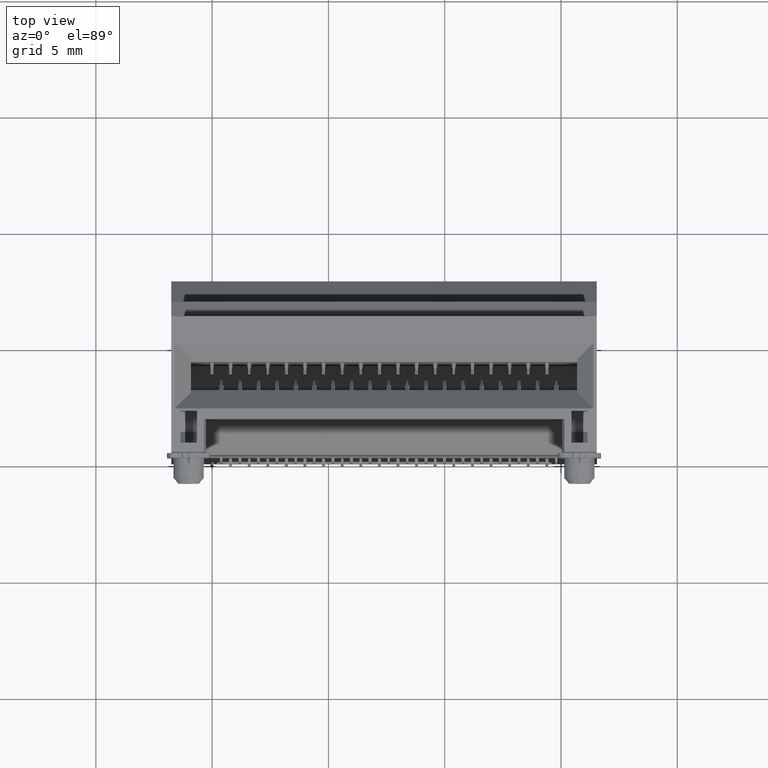
[diagram: clean part render]
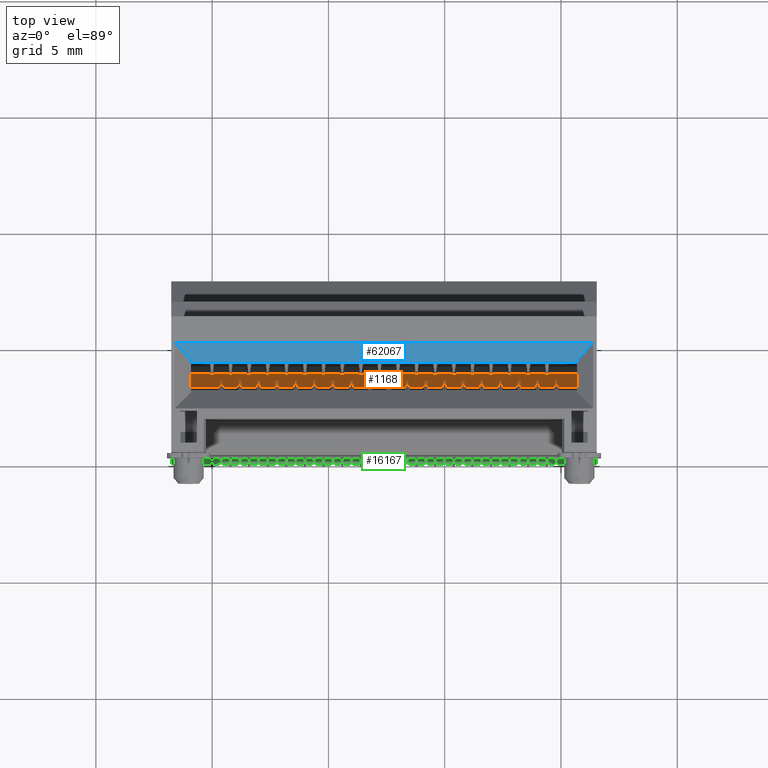
[diagram: same view with three faces highlighted in distinct colors, each labeled with its STEP entity id]
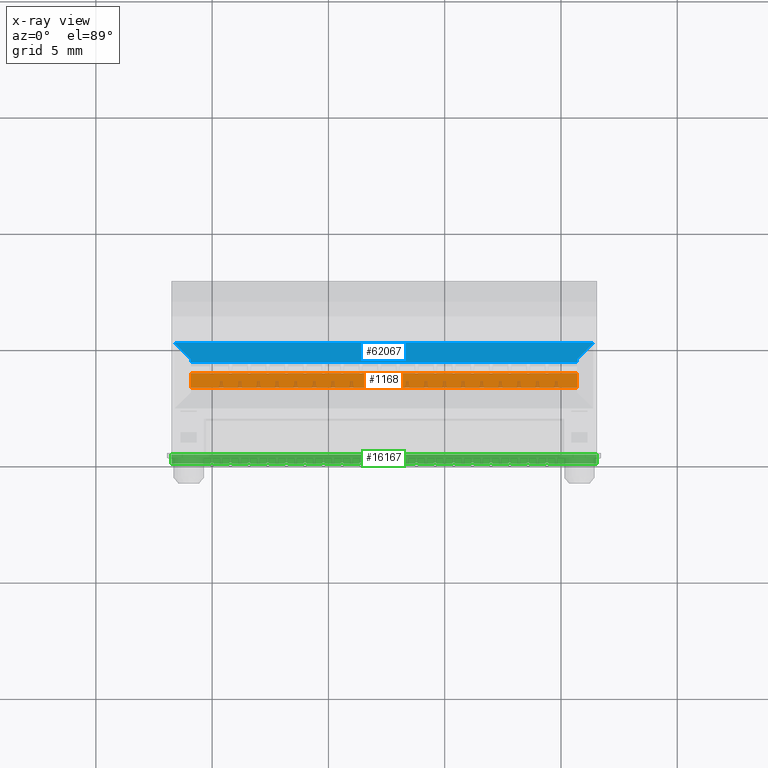
[diagram: x-ray of the same camera — body ghosted, the three highlighted faces saturated]
A machine part, top view with three faces highlighted in distinct colors.
The next image is the same camera in x-ray (body ghosted, the three faces saturated) — at least one of them is partly hidden behind the body in this view.
Their STEP definitions:

[orange] entity #1168 — the highlighted planar face has unit normal (0, 0, 1).
#670 = CARTESIAN_POINT ( 'NONE',  ( -11.33425875711219888, 3.804999999999954863, -3.100000000000000089 ) ) ;
#1168 = ADVANCED_FACE ( 'NONE', ( #17225 ), #20085, .T. ) ;
#5411 = EDGE_CURVE ( 'NONE', #43038, #7069, #67210, .T. ) ;
#7069 = VERTEX_POINT ( 'NONE', #41827 ) ;
#7453 = CARTESIAN_POINT ( 'NONE',  ( -10.90999468840028008, 3.195000000000039808, -3.100000000000000089 ) ) ;
#8852 = DIRECTION ( 'NONE',  ( 0.0000000000000000000, 0.0000000000000000000, 1.000000000000000000 ) ) ;
#10409 = VECTOR ( 'NONE', #22030, 1000.000000000000000 ) ;
#10969 = LINE ( 'NONE', #58455, #67474 ) ;
#14585 = CARTESIAN_POINT ( 'NONE',  ( -10.90999468840028008, 2.895000000000000018, -3.100000000000000089 ) ) ;
#15501 = CARTESIAN_POINT ( 'NONE',  ( -10.90999468840028008, 4.105000000000000426, -3.100000000000000089 ) ) ;
#15984 = CARTESIAN_POINT ( 'NONE',  ( -10.90999468840028008, 3.804999999999999716, -3.100000000000000089 ) ) ;
#17225 = FACE_OUTER_BOUND ( 'NONE', #27328, .T. ) ;
#17690 = EDGE_CURVE ( 'NONE', #51379, #7069, #51230, .T. ) ;
#19431 = VERTEX_POINT ( 'NONE', #7453 ) ;
#20085 = PLANE ( 'NONE',  #55649 ) ;
#22030 = DIRECTION ( 'NONE',  ( 0.0000000000000000000, -1.000000000000000000, 0.0000000000000000000 ) ) ;
#23265 = DIRECTION ( 'NONE',  ( 1.000000000000000000, 2.867311530540170300E-15, 0.0000000000000000000 ) ) ;
#23602 = EDGE_CURVE ( 'NONE', #51379, #19431, #51240, .T. ) ;
#24949 = CARTESIAN_POINT ( 'NONE',  ( 5.690005311599730220, 4.105000000000000426, -3.100000000000000089 ) ) ;
#25672 = ORIENTED_EDGE ( 'NONE', *, *, #23602, .T. ) ;
#27328 = EDGE_LOOP ( 'NONE', ( #76079, #37572, #57446, #25672 ) ) ;
#36369 = DIRECTION ( 'NONE',  ( -2.867311530540170300E-15, 1.000000000000000000, 0.0000000000000000000 ) ) ;
#37572 = ORIENTED_EDGE ( 'NONE', *, *, #5411, .T. ) ;
#41827 = CARTESIAN_POINT ( 'NONE',  ( 5.690005311599730220, 3.804999999999999716, -3.100000000000000089 ) ) ;
#43038 = VERTEX_POINT ( 'NONE', #68303 ) ;
#44790 = VECTOR ( 'NONE', #71183, 1000.000000000000000 ) ;
#51230 = LINE ( 'NONE', #670, #44790 ) ;
#51240 = LINE ( 'NONE', #15501, #10409 ) ;
#51379 = VERTEX_POINT ( 'NONE', #15984 ) ;
#55649 = AXIS2_PLACEMENT_3D ( 'NONE', #14585, #8852, #61440 ) ;
#57446 = ORIENTED_EDGE ( 'NONE', *, *, #17690, .F. ) ;
#58455 = CARTESIAN_POINT ( 'NONE',  ( -11.33425875711219888, 3.194999999999999840, -3.100000000000000089 ) ) ;
#61440 = DIRECTION ( 'NONE',  ( 1.000000000000000000, 0.0000000000000000000, 0.0000000000000000000 ) ) ;
#67210 = LINE ( 'NONE', #24949, #75538 ) ;
#67474 = VECTOR ( 'NONE', #23265, 1000.000000000000000 ) ;
#68303 = CARTESIAN_POINT ( 'NONE',  ( 5.690005311599730220, 3.195000000000039808, -3.100000000000000089 ) ) ;
#71183 = DIRECTION ( 'NONE',  ( 1.000000000000000000, 2.867311530540170300E-15, 0.0000000000000000000 ) ) ;
#71312 = EDGE_CURVE ( 'NONE', #19431, #43038, #10969, .T. ) ;
#75538 = VECTOR ( 'NONE', #36369, 1000.000000000000000 ) ;
#76079 = ORIENTED_EDGE ( 'NONE', *, *, #71312, .T. ) ;

[blue] entity #62067 — the highlighted planar face has unit normal (-0, 0.7071, -0.7071).
#642 = CARTESIAN_POINT ( 'NONE',  ( -10.87666135506693976, 4.171666666666665080, 8.266666666666671048 ) ) ;
#948 = VERTEX_POINT ( 'NONE', #35673 ) ;
#1134 = DIRECTION ( 'NONE',  ( 0.5773502691896247319, -0.5773502691896277295, -0.5773502691896247319 ) ) ;
#2423 = VECTOR ( 'NONE', #1134, 1000.000000000000227 ) ;
#2710 = FACE_OUTER_BOUND ( 'NONE', #6982, .T. ) ;
#2877 = DIRECTION ( 'NONE',  ( 0.5773502691896231775, 0.5773502691896291728, 0.5773502691896250649 ) ) ;
#4292 = VECTOR ( 'NONE', #71411, 1000.000000000000000 ) ;
#5575 = ORIENTED_EDGE ( 'NONE', *, *, #76540, .T. ) ;
#6982 = EDGE_LOOP ( 'NONE', ( #39334, #73294, #30087, #54590, #26210, #5575 ) ) ;
#7351 = VERTEX_POINT ( 'NONE', #50288 ) ;
#10000 = CARTESIAN_POINT ( 'NONE',  ( -10.90999468840028008, 4.205000000000000071, 8.300000000000000711 ) ) ;
#10852 = LINE ( 'NONE', #24063, #4292 ) ;
#11881 = AXIS2_PLACEMENT_3D ( 'NONE', #32267, #13356, #20108 ) ;
#13356 = DIRECTION ( 'NONE',  ( -2.887101963074885104E-16, 0.7071067811865450192, -0.7071067811865500152 ) ) ;
#14642 = VECTOR ( 'NONE', #27890, 1000.000000000000000 ) ;
#15438 = CARTESIAN_POINT ( 'NONE',  ( -11.75999468840026019, 4.904999999999999361, 9.000000000000000000 ) ) ;
#20108 = DIRECTION ( 'NONE',  ( -1.000000000000000000, 0.0000000000000000000, 4.082978752134475050E-16 ) ) ;
#20121 = CARTESIAN_POINT ( 'NONE',  ( 5.656671978266389900, 4.171666666666669521, 8.266666666666671048 ) ) ;
#20213 = EDGE_CURVE ( 'NONE', #948, #38310, #41613, .T. ) ;
#20259 = VECTOR ( 'NONE', #2877, 999.9999999999998863 ) ;
#22556 = CARTESIAN_POINT ( 'NONE',  ( 5.690005311599740878, -1.544999999999999929, 2.550000000000040234 ) ) ;
#24063 = CARTESIAN_POINT ( 'NONE',  ( -10.90999468840026054, 4.105000000000000426, 8.200000000000001066 ) ) ;
#26210 = ORIENTED_EDGE ( 'NONE', *, *, #20213, .F. ) ;
#27890 = DIRECTION ( 'NONE',  ( 1.000000000000000000, 3.135042426464109979E-16, -9.479363256703868881E-17 ) ) ;
#29295 = VERTEX_POINT ( 'NONE', #71577 ) ;
#30087 = ORIENTED_EDGE ( 'NONE', *, *, #63365, .F. ) ;
#32267 = CARTESIAN_POINT ( 'NONE',  ( -10.90999468840026054, 4.105000000000000426, 8.200000000000001066 ) ) ;
#35673 = CARTESIAN_POINT ( 'NONE',  ( -11.60999468840027937, 4.904999999999999361, 9.000000000000000000 ) ) ;
#38310 = VERTEX_POINT ( 'NONE', #68891 ) ;
#39334 = ORIENTED_EDGE ( 'NONE', *, *, #52310, .F. ) ;
#41613 = LINE ( 'NONE', #15438, #14642 ) ;
#50288 = CARTESIAN_POINT ( 'NONE',  ( -10.90999468840028008, 4.105000000000000426, 8.200000000000001066 ) ) ;
#51345 = VERTEX_POINT ( 'NONE', #10000 ) ;
#51847 = EDGE_CURVE ( 'NONE', #72937, #38310, #53612, .T. ) ;
#52310 = EDGE_CURVE ( 'NONE', #7351, #51345, #70311, .T. ) ;
#53612 = LINE ( 'NONE', #20121, #20259 ) ;
#54157 = VECTOR ( 'NONE', #57209, 1000.000000000000000 ) ;
#54590 = ORIENTED_EDGE ( 'NONE', *, *, #51847, .T. ) ;
#54709 = DIRECTION ( 'NONE',  ( 0.0000000000000000000, 0.7071067811865500152, 0.7071067811865450192 ) ) ;
#57209 = DIRECTION ( 'NONE',  ( 2.027495427019340292E-15, -0.7071067811865500152, -0.7071067811865450192 ) ) ;
#58286 = VECTOR ( 'NONE', #54709, 1000.000000000000000 ) ;
#61225 = PLANE ( 'NONE',  #11881 ) ;
#62067 = ADVANCED_FACE ( 'NONE', ( #2710 ), #61225, .F. ) ;
#63365 = EDGE_CURVE ( 'NONE', #72937, #29295, #67026, .T. ) ;
#67026 = LINE ( 'NONE', #22556, #54157 ) ;
#67096 = CARTESIAN_POINT ( 'NONE',  ( -10.90999468840028008, -1.544999999999999929, 2.550000000000045119 ) ) ;
#68891 = CARTESIAN_POINT ( 'NONE',  ( 6.390005311599720628, 4.904999999999999361, 9.000000000000000000 ) ) ;
#69237 = LINE ( 'NONE', #642, #2423 ) ;
#70311 = LINE ( 'NONE', #67096, #58286 ) ;
#71411 = DIRECTION ( 'NONE',  ( -1.000000000000000000, -3.135042426464109979E-16, 9.479363256703868881E-17 ) ) ;
#71577 = CARTESIAN_POINT ( 'NONE',  ( 5.690005311599730220, 4.105000000000000426, 8.200000000000001066 ) ) ;
#72937 = VERTEX_POINT ( 'NONE', #75272 ) ;
#73294 = ORIENTED_EDGE ( 'NONE', *, *, #76526, .F. ) ;
#75272 = CARTESIAN_POINT ( 'NONE',  ( 5.690005311599720450, 4.205000000000000071, 8.300000000000000711 ) ) ;
#76526 = EDGE_CURVE ( 'NONE', #29295, #7351, #10852, .T. ) ;
#76540 = EDGE_CURVE ( 'NONE', #948, #51345, #69237, .T. ) ;

[green] entity #16167 — the highlighted planar face has unit normal (0, 0, -1).
#126 = VERTEX_POINT ( 'NONE', #69650 ) ;
#208 = VECTOR ( 'NONE', #9753, 1000.000000000000000 ) ;
#530 = ORIENTED_EDGE ( 'NONE', *, *, #36964, .T. ) ;
#536 = ORIENTED_EDGE ( 'NONE', *, *, #42534, .F. ) ;
#552 = EDGE_CURVE ( 'NONE', #25008, #17943, #61737, .T. ) ;
#566 = EDGE_CURVE ( 'NONE', #34133, #47303, #46081, .T. ) ;
#785 = CARTESIAN_POINT ( 'NONE',  ( -0.4699946884002720315, 0.1000000000000000056, -13.50000000000000000 ) ) ;
#984 = VERTEX_POINT ( 'NONE', #31477 ) ;
#1091 = ORIENTED_EDGE ( 'NONE', *, *, #65498, .T. ) ;
#1121 = ORIENTED_EDGE ( 'NONE', *, *, #45023, .F. ) ;
#1125 = CARTESIAN_POINT ( 'NONE',  ( -3.669994688400274985, 0.1500000000001250056, -13.50000000000000000 ) ) ;
#1167 = DIRECTION ( 'NONE',  ( 1.000000000000000000, 0.0000000000000000000, -4.525365589504720402E-15 ) ) ;
#1288 = ORIENTED_EDGE ( 'NONE', *, *, #46634, .F. ) ;
#1593 = LINE ( 'NONE', #34450, #40603 ) ;
#1635 = VECTOR ( 'NONE', #57521, 1000.000000000000000 ) ;
#1670 = VERTEX_POINT ( 'NONE', #37605 ) ;
#1723 = VECTOR ( 'NONE', #67534, 1000.000000000000000 ) ;
#1853 = CARTESIAN_POINT ( 'NONE',  ( -4.469994688400275251, 0.1500000000001250056, -13.50000000000000000 ) ) ;
#1931 = CARTESIAN_POINT ( 'NONE',  ( -0.4699946884002720315, 0.1500000000001269762, -13.50000000000000000 ) ) ;
#1966 = VERTEX_POINT ( 'NONE', #3775 ) ;
#1975 = CARTESIAN_POINT ( 'NONE',  ( 4.330005311599724571, 0.1000000000000000056, -13.50000000000000000 ) ) ;
#2003 = ORIENTED_EDGE ( 'NONE', *, *, #9907, .T. ) ;
#2045 = LINE ( 'NONE', #59371, #61413 ) ;
#2237 = DIRECTION ( 'NONE',  ( 1.000000000000000000, 3.414044462388220122E-29, 4.525365589504730657E-15 ) ) ;
#2260 = CARTESIAN_POINT ( 'NONE',  ( -1.149994688400272080, 0.2000000000000000111, -13.50000000000000000 ) ) ;
#2328 = EDGE_CURVE ( 'NONE', #48258, #64772, #70645, .T. ) ;
#2422 = CARTESIAN_POINT ( 'NONE',  ( -4.319994688400279337, 0.1500000000001269762, -13.50000000000000000 ) ) ;
#2457 = CARTESIAN_POINT ( 'NONE',  ( -5.949994688400270348, 0.3500000000001269873, -13.50000000000000000 ) ) ;
#2545 = LINE ( 'NONE', #52425, #48118 ) ;
#2569 = DIRECTION ( 'NONE',  ( 1.161645184805897995E-16, -1.000000000000000000, 5.256869146534469423E-31 ) ) ;
#2638 = CARTESIAN_POINT ( 'NONE',  ( -10.60999468840028115, 0.1000000000000000056, -13.50000000000000000 ) ) ;
#2715 = EDGE_CURVE ( 'NONE', #45799, #71038, #38127, .T. ) ;
#2724 = EDGE_CURVE ( 'NONE', #59465, #25008, #50148, .T. ) ;
#2944 = EDGE_CURVE ( 'NONE', #49831, #69566, #64903, .T. ) ;
#3057 = EDGE_CURVE ( 'NONE', #53899, #4365, #62061, .T. ) ;
#3063 = ORIENTED_EDGE ( 'NONE', *, *, #3736, .F. ) ;
#3624 = EDGE_CURVE ( 'NONE', #55452, #41302, #28696, .T. ) ;
#3736 = EDGE_CURVE ( 'NONE', #10868, #24712, #70261, .T. ) ;
#3775 = CARTESIAN_POINT ( 'NONE',  ( -1.269994688400273963, 0.1000000000000000056, -13.50000000000000000 ) ) ;
#3874 = VERTEX_POINT ( 'NONE', #8748 ) ;
#3921 = CARTESIAN_POINT ( 'NONE',  ( -6.749994688400270171, 0.1000000000000000056, -13.50000000000000000 ) ) ;
#4066 = EDGE_CURVE ( 'NONE', #48258, #53869, #1593, .T. ) ;
#4093 = VECTOR ( 'NONE', #72828, 1000.000000000000000 ) ;
#4102 = DIRECTION ( 'NONE',  ( 1.000000000000000000, 3.414044462388220122E-29, 4.525365589504730657E-15 ) ) ;
#4119 = LINE ( 'NONE', #56655, #48766 ) ;
#4268 = VECTOR ( 'NONE', #2569, 1000.000000000000000 ) ;
#4333 = CARTESIAN_POINT ( 'NONE',  ( -10.60999468840028115, 0.1000000000000000056, -13.50000000000000000 ) ) ;
#4365 = VERTEX_POINT ( 'NONE', #1125 ) ;
#4515 = LINE ( 'NONE', #61125, #73164 ) ;
#4916 = DIRECTION ( 'NONE',  ( -1.161645184805897995E-16, 1.000000000000000000, -5.256869146534469423E-31 ) ) ;
#5050 = LINE ( 'NONE', #45968, #24655 ) ;
#5112 = VERTEX_POINT ( 'NONE', #51149 ) ;
#5127 = VERTEX_POINT ( 'NONE', #57840 ) ;
#5135 = ORIENTED_EDGE ( 'NONE', *, *, #55892, .T. ) ;
#5461 = CARTESIAN_POINT ( 'NONE',  ( -10.60999468840028115, 0.1000000000000000056, -13.50000000000000000 ) ) ;
#5491 = VERTEX_POINT ( 'NONE', #6968 ) ;
#5500 = DIRECTION ( 'NONE',  ( -1.000000000000000000, -3.414044462388220122E-29, -4.525365589504730657E-15 ) ) ;
#5530 = VECTOR ( 'NONE', #26367, 1000.000000000000000 ) ;
#5572 = CARTESIAN_POINT ( 'NONE',  ( -1.949994688400275233, 0.1500000000001269762, -13.50000000000000000 ) ) ;
#5636 = VERTEX_POINT ( 'NONE', #7742 ) ;
#5778 = VERTEX_POINT ( 'NONE', #63441 ) ;
#5782 = CARTESIAN_POINT ( 'NONE',  ( 2.730005311599729811, 0.1500000000001269762, -13.50000000000000000 ) ) ;
#5821 = CARTESIAN_POINT ( 'NONE',  ( -6.749994688400270171, 0.1500000000001269762, -13.50000000000000000 ) ) ;
#5910 = EDGE_CURVE ( 'NONE', #13410, #5112, #67061, .T. ) ;
#6004 = EDGE_CURVE ( 'NONE', #31391, #46724, #54187, .T. ) ;
#6647 = DIRECTION ( 'NONE',  ( 1.000000000000000000, 3.414044462388220122E-29, 4.525365589504730657E-15 ) ) ;
#6833 = ORIENTED_EDGE ( 'NONE', *, *, #62217, .F. ) ;
#6968 = CARTESIAN_POINT ( 'NONE',  ( -6.069994688400270455, 0.1000000000000000056, -13.50000000000000000 ) ) ;
#7001 = EDGE_CURVE ( 'NONE', #18120, #63552, #2545, .T. ) ;
#7164 = CARTESIAN_POINT ( 'NONE',  ( -11.75999468840027973, 0.5000000000000000000, -13.50000000000000000 ) ) ;
#7211 = CARTESIAN_POINT ( 'NONE',  ( -9.149994688400271414, 0.3500000000001269873, -13.50000000000000000 ) ) ;
#7218 = DIRECTION ( 'NONE',  ( 1.161645184805897995E-16, 1.000000000000000000, 5.256869146534469423E-31 ) ) ;
#7228 = VERTEX_POINT ( 'NONE', #66339 ) ;
#7445 = ORIENTED_EDGE ( 'NONE', *, *, #45828, .T. ) ;
#7742 = CARTESIAN_POINT ( 'NONE',  ( -5.269994688400269744, 0.1000000000000000056, -13.50000000000000000 ) ) ;
#7822 = ORIENTED_EDGE ( 'NONE', *, *, #2715, .T. ) ;
#8127 = EDGE_CURVE ( 'NONE', #33616, #13410, #34256, .T. ) ;
#8188 = EDGE_CURVE ( 'NONE', #72722, #9596, #44448, .T. ) ;
#8262 = DIRECTION ( 'NONE',  ( -1.000000000000000000, -3.414044462388220122E-29, -4.525365589504730657E-15 ) ) ;
#8402 = DIRECTION ( 'NONE',  ( 1.000000000000000000, 3.414044462388220122E-29, 4.525365589504730657E-15 ) ) ;
#8455 = CARTESIAN_POINT ( 'NONE',  ( -10.06999468840028022, 0.1000000000000000056, -13.50000000000000000 ) ) ;
#8512 = LINE ( 'NONE', #29776, #29038 ) ;
#8634 = DIRECTION ( 'NONE',  ( 1.000000000000000000, 0.0000000000000000000, -4.525365589504720402E-15 ) ) ;
#8728 = DIRECTION ( 'NONE',  ( 1.161645184805897995E-16, 1.000000000000000000, 5.256869146534469423E-31 ) ) ;
#8748 = CARTESIAN_POINT ( 'NONE',  ( 0.3300053115997230169, 0.1500000000001269762, -13.50000000000000000 ) ) ;
#8760 = VECTOR ( 'NONE', #48647, 1000.000000000000000 ) ;
#8808 = VERTEX_POINT ( 'NONE', #11837 ) ;
#9060 = VECTOR ( 'NONE', #54169, 1000.000000000000000 ) ;
#9166 = VERTEX_POINT ( 'NONE', #50397 ) ;
#9443 = VECTOR ( 'NONE', #4916, 1000.000000000000000 ) ;
#9447 = EDGE_CURVE ( 'NONE', #69873, #57205, #52520, .T. ) ;
#9596 = VERTEX_POINT ( 'NONE', #785 ) ;
#9616 = VECTOR ( 'NONE', #17468, 1000.000000000000000 ) ;
#9753 = DIRECTION ( 'NONE',  ( 1.000000000000000000, 0.0000000000000000000, -4.525365589504720402E-15 ) ) ;
#9907 = EDGE_CURVE ( 'NONE', #1670, #5636, #29347, .T. ) ;
#10031 = VECTOR ( 'NONE', #69505, 1000.000000000000000 ) ;
#10062 = DIRECTION ( 'NONE',  ( 1.000000000000000000, 0.0000000000000000000, -4.525365589504720402E-15 ) ) ;
#10135 = ORIENTED_EDGE ( 'NONE', *, *, #2724, .T. ) ;
#10292 = EDGE_CURVE ( 'NONE', #66891, #38512, #4119, .T. ) ;
#10299 = VERTEX_POINT ( 'NONE', #67522 ) ;
#10511 = DIRECTION ( 'NONE',  ( 1.000000000000000000, 0.0000000000000000000, -4.525365589504720402E-15 ) ) ;
#10658 = ORIENTED_EDGE ( 'NONE', *, *, #22590, .T. ) ;
#10698 = CARTESIAN_POINT ( 'NONE',  ( -1.269994688400273963, 0.2000000000000000111, -13.50000000000000000 ) ) ;
#10768 = CARTESIAN_POINT ( 'NONE',  ( -5.149994688400269638, 0.1000000000000000056, -13.50000000000000000 ) ) ;
#10868 = VERTEX_POINT ( 'NONE', #72506 ) ;
#10946 = EDGE_CURVE ( 'NONE', #63001, #28753, #69978, .T. ) ;
#11128 = CARTESIAN_POINT ( 'NONE',  ( -9.269994688400268856, 0.1500000000001250056, -13.50000000000000000 ) ) ;
#11218 = DIRECTION ( 'NONE',  ( -1.161645184805897995E-16, 1.000000000000000000, -5.256869146534469423E-31 ) ) ;
#11239 = CARTESIAN_POINT ( 'NONE',  ( -1.149994688400272080, 0.1000000000000000056, -13.50000000000000000 ) ) ;
#11296 = CARTESIAN_POINT ( 'NONE',  ( -8.349994688400270704, 0.3500000000001269873, -13.50000000000000000 ) ) ;
#11538 = CARTESIAN_POINT ( 'NONE',  ( -9.949994688400268572, 0.2000000000000000111, -13.50000000000000000 ) ) ;
#11612 = ORIENTED_EDGE ( 'NONE', *, *, #22999, .T. ) ;
#11670 = EDGE_CURVE ( 'NONE', #24373, #49387, #55846, .T. ) ;
#11688 = VERTEX_POINT ( 'NONE', #16257 ) ;
#11718 = LINE ( 'NONE', #57879, #33989 ) ;
#11766 = EDGE_CURVE ( 'NONE', #14883, #72722, #70718, .T. ) ;
#11835 = ORIENTED_EDGE ( 'NONE', *, *, #8127, .T. ) ;
#11837 = CARTESIAN_POINT ( 'NONE',  ( -3.549994688400274878, 0.1000000000000000056, -13.50000000000000000 ) ) ;
#11947 = VERTEX_POINT ( 'NONE', #19091 ) ;
#12061 = CARTESIAN_POINT ( 'NONE',  ( -5.269994688400269744, 0.2000000000000000111, -13.50000000000000000 ) ) ;
#12106 = VERTEX_POINT ( 'NONE', #62227 ) ;
#12138 = CARTESIAN_POINT ( 'NONE',  ( -10.60999468840028115, 0.1000000000000000056, -13.50000000000000000 ) ) ;
#12229 = VERTEX_POINT ( 'NONE', #21903 ) ;
#12499 = EDGE_CURVE ( 'NONE', #65555, #57198, #24287, .T. ) ;
#12972 = CARTESIAN_POINT ( 'NONE',  ( -4.349994688400275145, 0.1000000000000000056, -13.50000000000000000 ) ) ;
#13066 = DIRECTION ( 'NONE',  ( -1.000000000000000000, -3.414044462388220122E-29, -4.525365589504730657E-15 ) ) ;
#13130 = CARTESIAN_POINT ( 'NONE',  ( -8.469994688400269922, 0.1500000000001250056, -13.50000000000000000 ) ) ;
#13230 = EDGE_CURVE ( 'NONE', #5127, #46819, #63127, .T. ) ;
#13394 = ORIENTED_EDGE ( 'NONE', *, *, #29693, .T. ) ;
#13410 = VERTEX_POINT ( 'NONE', #66468 ) ;
#13587 = LINE ( 'NONE', #68171, #34959 ) ;
#13659 = PLANE ( 'NONE',  #34111 ) ;
#13765 = CARTESIAN_POINT ( 'NONE',  ( -10.60999468840028115, 0.1000000000000000056, -13.50000000000000000 ) ) ;
#13993 = ORIENTED_EDGE ( 'NONE', *, *, #62746, .T. ) ;
#14141 = VECTOR ( 'NONE', #52344, 1000.000000000000000 ) ;
#14163 = LINE ( 'NONE', #48636, #32803 ) ;
#14268 = DIRECTION ( 'NONE',  ( 1.161645184805897995E-16, -1.000000000000000000, 5.256869146534469423E-31 ) ) ;
#14371 = LINE ( 'NONE', #24869, #32034 ) ;
#14632 = VERTEX_POINT ( 'NONE', #73266 ) ;
#14668 = CARTESIAN_POINT ( 'NONE',  ( -10.60999468840028115, 0.1000000000000000056, -13.50000000000000000 ) ) ;
#14784 = DIRECTION ( 'NONE',  ( 1.000000000000000000, 0.0000000000000000000, -4.525365589504720402E-15 ) ) ;
#14883 = VERTEX_POINT ( 'NONE', #64174 ) ;
#14896 = VECTOR ( 'NONE', #8728, 1000.000000000000000 ) ;
#15123 = LINE ( 'NONE', #47188, #14141 ) ;
#15191 = ORIENTED_EDGE ( 'NONE', *, *, #76856, .T. ) ;
#15327 = DIRECTION ( 'NONE',  ( 1.161645184805897995E-16, 1.000000000000000000, 5.256869146534469423E-31 ) ) ;
#15329 = VECTOR ( 'NONE', #14784, 1000.000000000000000 ) ;
#15428 = LINE ( 'NONE', #71214, #69138 ) ;
#15450 = DIRECTION ( 'NONE',  ( 1.161645184805897995E-16, -1.000000000000000000, 5.256869146534469423E-31 ) ) ;
#15453 = LINE ( 'NONE', #40583, #23799 ) ;
#15583 = DIRECTION ( 'NONE',  ( -1.161645184805897995E-16, -1.000000000000000000, -5.256869146534469423E-31 ) ) ;
#15806 = ORIENTED_EDGE ( 'NONE', *, *, #69339, .F. ) ;
#15902 = ORIENTED_EDGE ( 'NONE', *, *, #25095, .T. ) ;
#15903 = DIRECTION ( 'NONE',  ( -1.161645184805897995E-16, -1.000000000000000000, -5.256869146534469423E-31 ) ) ;
#15986 = VECTOR ( 'NONE', #67095, 1000.000000000000000 ) ;
#16038 = VECTOR ( 'NONE', #6647, 1000.000000000000000 ) ;
#16167 = ADVANCED_FACE ( 'NONE', ( #72881 ), #13659, .F. ) ;
#16257 = CARTESIAN_POINT ( 'NONE',  ( -8.349994688400270704, 0.1000000000000000056, -13.50000000000000000 ) ) ;
#16606 = CARTESIAN_POINT ( 'NONE',  ( -2.869994688400270277, 0.2000000000000000111, -13.50000000000000000 ) ) ;
#16714 = CARTESIAN_POINT ( 'NONE',  ( -10.60999468840028115, 0.1000000000000000056, -13.50000000000000000 ) ) ;
#16715 = CARTESIAN_POINT ( 'NONE',  ( 2.850005311599729918, 0.1500000000001269762, -13.50000000000000000 ) ) ;
#16854 = DIRECTION ( 'NONE',  ( -1.000000000000000000, -3.414044462388220122E-29, -4.525365589504730657E-15 ) ) ;
#17066 = CARTESIAN_POINT ( 'NONE',  ( 4.330005311599724571, 0.2000000000000000111, -13.50000000000000000 ) ) ;
#17145 = CARTESIAN_POINT ( 'NONE',  ( -10.60999468840028115, 0.1000000000000000056, -13.50000000000000000 ) ) ;
#17218 = CARTESIAN_POINT ( 'NONE',  ( 1.280005311599723861, 0.1500000000001269762, -13.50000000000000000 ) ) ;
#17361 = CARTESIAN_POINT ( 'NONE',  ( 3.530005311599725193, 0.3500000000001269873, -13.50000000000000000 ) ) ;
#17468 = DIRECTION ( 'NONE',  ( 1.000000000000000000, 0.0000000000000000000, -4.525365589504720402E-15 ) ) ;
#17672 = VECTOR ( 'NONE', #63223, 1000.000000000000000 ) ;
#17734 = CARTESIAN_POINT ( 'NONE',  ( -10.60999468840028115, 0.1000000000000000056, -13.50000000000000000 ) ) ;
#17757 = DIRECTION ( 'NONE',  ( 1.000000000000000000, 0.0000000000000000000, -4.525365589504720402E-15 ) ) ;
#17943 = VERTEX_POINT ( 'NONE', #45305 ) ;
#18035 = EDGE_CURVE ( 'NONE', #49387, #46724, #45683, .T. ) ;
#18053 = ORIENTED_EDGE ( 'NONE', *, *, #11670, .F. ) ;
#18120 = VERTEX_POINT ( 'NONE', #64130 ) ;
#18433 = DIRECTION ( 'NONE',  ( -1.161645184805897995E-16, -1.000000000000000000, -5.256869146534469423E-31 ) ) ;
#18455 = VECTOR ( 'NONE', #16854, 1000.000000000000000 ) ;
#18595 = LINE ( 'NONE', #32215, #27860 ) ;
#18739 = VECTOR ( 'NONE', #15450, 1000.000000000000000 ) ;
#19091 = CARTESIAN_POINT ( 'NONE',  ( -5.269994688400269744, 0.1500000000001250056, -13.50000000000000000 ) ) ;
#19456 = DIRECTION ( 'NONE',  ( -1.161645184805897995E-16, -1.000000000000000000, -5.256869146534469423E-31 ) ) ;
#19717 = CARTESIAN_POINT ( 'NONE',  ( -4.469994688400275251, 0.1000000000000000056, -13.50000000000000000 ) ) ;
#19736 = CARTESIAN_POINT ( 'NONE',  ( 4.450005311599730007, 0.1500000000001269762, -13.50000000000000000 ) ) ;
#19748 = DIRECTION ( 'NONE',  ( -1.161645184805897995E-16, 1.000000000000000000, -5.256869146534469423E-31 ) ) ;
#19859 = LINE ( 'NONE', #36731, #31892 ) ;
#20051 = ORIENTED_EDGE ( 'NONE', *, *, #53321, .F. ) ;
#20054 = LINE ( 'NONE', #50878, #20958 ) ;
#20055 = CARTESIAN_POINT ( 'NONE',  ( -9.149994688400271414, 0.1000000000000000056, -13.50000000000000000 ) ) ;
#20128 = VECTOR ( 'NONE', #55116, 1000.000000000000000 ) ;
#20219 = VERTEX_POINT ( 'NONE', #10768 ) ;
#20620 = ORIENTED_EDGE ( 'NONE', *, *, #75508, .T. ) ;
#20958 = VECTOR ( 'NONE', #11218, 1000.000000000000000 ) ;
#20998 = ORIENTED_EDGE ( 'NONE', *, *, #12499, .T. ) ;
#21007 = LINE ( 'NONE', #11538, #58932 ) ;
#21027 = EDGE_CURVE ( 'NONE', #25498, #41501, #61740, .T. ) ;
#21305 = VERTEX_POINT ( 'NONE', #11128 ) ;
#21901 = LINE ( 'NONE', #2638, #33922 ) ;
#21903 = CARTESIAN_POINT ( 'NONE',  ( 3.650005311599730184, 0.1000000000000000056, -13.50000000000000000 ) ) ;
#21960 = LINE ( 'NONE', #58823, #37706 ) ;
#21981 = ORIENTED_EDGE ( 'NONE', *, *, #6004, .T. ) ;
#22259 = VERTEX_POINT ( 'NONE', #13130 ) ;
#22354 = DIRECTION ( 'NONE',  ( 1.000000000000000000, 0.0000000000000000000, -4.525365589504720402E-15 ) ) ;
#22362 = CARTESIAN_POINT ( 'NONE',  ( -10.60999468840028115, 0.1000000000000000056, -13.50000000000000000 ) ) ;
#22395 = VECTOR ( 'NONE', #26622, 1000.000000000000000 ) ;
#22396 = LINE ( 'NONE', #61086, #14896 ) ;
#22590 = EDGE_CURVE ( 'NONE', #25498, #9596, #22598, .T. ) ;
#22598 = LINE ( 'NONE', #16714, #66080 ) ;
#22857 = DIRECTION ( 'NONE',  ( 1.000000000000000000, 3.414044462388220122E-29, 4.525365589504730657E-15 ) ) ;
#22876 = VECTOR ( 'NONE', #15903, 1000.000000000000000 ) ;
#22999 = EDGE_CURVE ( 'NONE', #12106, #12229, #68008, .T. ) ;
#23181 = VECTOR ( 'NONE', #69200, 1000.000000000000000 ) ;
#23442 = ORIENTED_EDGE ( 'NONE', *, *, #67195, .T. ) ;
#23455 = CARTESIAN_POINT ( 'NONE',  ( -2.749994688400269727, 0.1500000000001269762, -13.50000000000000000 ) ) ;
#23682 = CARTESIAN_POINT ( 'NONE',  ( -10.60999468840028115, 0.1000000000000000056, -13.50000000000000000 ) ) ;
#23799 = VECTOR ( 'NONE', #33856, 1000.000000000000000 ) ;
#23884 = DIRECTION ( 'NONE',  ( -1.000000000000000000, -3.414044462388220122E-29, -4.525365589504730657E-15 ) ) ;
#23962 = EDGE_CURVE ( 'NONE', #34363, #69566, #19859, .T. ) ;
#24226 = VECTOR ( 'NONE', #34649, 1000.000000000000000 ) ;
#24287 = LINE ( 'NONE', #7211, #74258 ) ;
#24371 = EDGE_CURVE ( 'NONE', #38512, #9166, #30938, .T. ) ;
#24373 = VERTEX_POINT ( 'NONE', #7164 ) ;
#24390 = EDGE_CURVE ( 'NONE', #21305, #65555, #66102, .T. ) ;
#24408 = VECTOR ( 'NONE', #70531, 1000.000000000000000 ) ;
#24593 = ORIENTED_EDGE ( 'NONE', *, *, #2944, .T. ) ;
#24655 = VECTOR ( 'NONE', #75419, 1000.000000000000000 ) ;
#24672 = ORIENTED_EDGE ( 'NONE', *, *, #566, .T. ) ;
#24679 = CARTESIAN_POINT ( 'NONE',  ( 4.330005311599724571, 0.1500000000001269762, -13.50000000000000000 ) ) ;
#24712 = VERTEX_POINT ( 'NONE', #68541 ) ;
#24740 = LINE ( 'NONE', #10698, #22876 ) ;
#24869 = CARTESIAN_POINT ( 'NONE',  ( -10.60999468840028115, 0.1000000000000000056, -13.50000000000000000 ) ) ;
#25008 = VERTEX_POINT ( 'NONE', #1853 ) ;
#25095 = EDGE_CURVE ( 'NONE', #4365, #58281, #14163, .T. ) ;
#25240 = ORIENTED_EDGE ( 'NONE', *, *, #55971, .T. ) ;
#25413 = EDGE_CURVE ( 'NONE', #984, #46149, #69772, .T. ) ;
#25498 = VERTEX_POINT ( 'NONE', #11239 ) ;
#25650 = EDGE_CURVE ( 'NONE', #71792, #34363, #48422, .T. ) ;
#25700 = EDGE_CURVE ( 'NONE', #12229, #48254, #45674, .T. ) ;
#25909 = LINE ( 'NONE', #75670, #23181 ) ;
#26024 = VECTOR ( 'NONE', #17757, 1000.000000000000000 ) ;
#26367 = DIRECTION ( 'NONE',  ( 1.000000000000000000, 0.0000000000000000000, -4.525365589504720402E-15 ) ) ;
#26515 = CARTESIAN_POINT ( 'NONE',  ( -6.749994688400270171, 0.3500000000001269873, -13.50000000000000000 ) ) ;
#26571 = ORIENTED_EDGE ( 'NONE', *, *, #63037, .T. ) ;
#26622 = DIRECTION ( 'NONE',  ( 1.161645184805897995E-16, 1.000000000000000000, 5.256869146534469423E-31 ) ) ;
#26812 = VECTOR ( 'NONE', #74857, 1000.000000000000000 ) ;
#26881 = CARTESIAN_POINT ( 'NONE',  ( -1.919994688400280092, 0.1500000000001269762, -13.50000000000000000 ) ) ;
#27200 = ORIENTED_EDGE ( 'NONE', *, *, #13230, .T. ) ;
#27709 = LINE ( 'NONE', #5461, #31429 ) ;
#27785 = ORIENTED_EDGE ( 'NONE', *, *, #45965, .F. ) ;
#27807 = EDGE_CURVE ( 'NONE', #57198, #14632, #51673, .T. ) ;
#27837 = ORIENTED_EDGE ( 'NONE', *, *, #25413, .T. ) ;
#27860 = VECTOR ( 'NONE', #15327, 1000.000000000000000 ) ;
#28045 = EDGE_CURVE ( 'NONE', #69873, #70340, #34013, .T. ) ;
#28050 = VERTEX_POINT ( 'NONE', #46319 ) ;
#28053 = VERTEX_POINT ( 'NONE', #35150 ) ;
#28245 = EDGE_CURVE ( 'NONE', #69875, #55452, #21007, .T. ) ;
#28246 = ORIENTED_EDGE ( 'NONE', *, *, #56899, .T. ) ;
#28277 = LINE ( 'NONE', #55005, #4093 ) ;
#28349 = CARTESIAN_POINT ( 'NONE',  ( 2.050005311599730096, 0.3500000000001269873, -13.50000000000000000 ) ) ;
#28593 = EDGE_CURVE ( 'NONE', #28053, #11947, #5050, .T. ) ;
#28666 = CARTESIAN_POINT ( 'NONE',  ( -10.60999468840028115, 0.1000000000000000056, -13.50000000000000000 ) ) ;
#28696 = LINE ( 'NONE', #29575, #59199 ) ;
#28753 = VERTEX_POINT ( 'NONE', #53154 ) ;
#29038 = VECTOR ( 'NONE', #64697, 1000.000000000000000 ) ;
#29347 = LINE ( 'NONE', #17145, #54386 ) ;
#29462 = ORIENTED_EDGE ( 'NONE', *, *, #28245, .F. ) ;
#29570 = DIRECTION ( 'NONE',  ( -1.000000000000000000, -3.414044462388220122E-29, -4.525365589504730657E-15 ) ) ;
#29575 = CARTESIAN_POINT ( 'NONE',  ( 5.390005311599730398, 0.1500000000001269762, -13.50000000000000000 ) ) ;
#29693 = EDGE_CURVE ( 'NONE', #72477, #28050, #64443, .T. ) ;
#29776 = CARTESIAN_POINT ( 'NONE',  ( -5.149994688400269638, 0.2000000000000000111, -13.50000000000000000 ) ) ;
#30185 = EDGE_CURVE ( 'NONE', #69875, #50158, #14371, .T. ) ;
#30312 = LINE ( 'NONE', #12061, #64515 ) ;
#30329 = ORIENTED_EDGE ( 'NONE', *, *, #10946, .T. ) ;
#30626 = EDGE_CURVE ( 'NONE', #58281, #8808, #34789, .T. ) ;
#30642 = DIRECTION ( 'NONE',  ( 1.161645184805897995E-16, -1.000000000000000000, 5.256869146534469423E-31 ) ) ;
#30714 = VECTOR ( 'NONE', #8402, 1000.000000000000000 ) ;
#30938 = LINE ( 'NONE', #16606, #37394 ) ;
#31007 = LINE ( 'NONE', #23682, #9616 ) ;
#31112 = EDGE_CURVE ( 'NONE', #5778, #1966, #31007, .T. ) ;
#31159 = DIRECTION ( 'NONE',  ( 1.000000000000000000, 3.414044462388220122E-29, 4.525365589504730657E-15 ) ) ;
#31391 = VERTEX_POINT ( 'NONE', #44649 ) ;
#31429 = VECTOR ( 'NONE', #75736, 1000.000000000000000 ) ;
#31477 = CARTESIAN_POINT ( 'NONE',  ( 1.130005311599723949, 0.1500000000001250056, -13.50000000000000000 ) ) ;
#31627 = EDGE_CURVE ( 'NONE', #34133, #14883, #15123, .T. ) ;
#31821 = DIRECTION ( 'NONE',  ( 1.000000000000000000, 0.0000000000000000000, -4.525365589504720402E-15 ) ) ;
#31892 = VECTOR ( 'NONE', #15583, 1000.000000000000000 ) ;
#32034 = VECTOR ( 'NONE', #1167, 1000.000000000000000 ) ;
#32070 = DIRECTION ( 'NONE',  ( 0.0000000000000000000, -1.000000000000000000, 0.0000000000000000000 ) ) ;
#32215 = CARTESIAN_POINT ( 'NONE',  ( -9.269994688400268856, 0.3500000000001269873, -13.50000000000000000 ) ) ;
#32216 = EDGE_CURVE ( 'NONE', #53869, #984, #22396, .T. ) ;
#32803 = VECTOR ( 'NONE', #49627, 1000.000000000000000 ) ;
#33222 = VECTOR ( 'NONE', #55914, 1000.000000000000000 ) ;
#33326 = ORIENTED_EDGE ( 'NONE', *, *, #28045, .F. ) ;
#33373 = LINE ( 'NONE', #2457, #1723 ) ;
#33447 = LINE ( 'NONE', #22362, #17672 ) ;
#33451 = VECTOR ( 'NONE', #59950, 1000.000000000000000 ) ;
#33616 = VERTEX_POINT ( 'NONE', #40985 ) ;
#33856 = DIRECTION ( 'NONE',  ( 0.0000000000000000000, -1.000000000000000000, 0.0000000000000000000 ) ) ;
#33909 = CARTESIAN_POINT ( 'NONE',  ( -0.3499946884002700376, 0.1000000000000000056, -13.50000000000000000 ) ) ;
#33923 = ORIENTED_EDGE ( 'NONE', *, *, #49205, .T. ) ;
#33922 = VECTOR ( 'NONE', #8634, 1000.000000000000000 ) ;
#33989 = VECTOR ( 'NONE', #40828, 1000.000000000000000 ) ;
#34013 = LINE ( 'NONE', #75505, #50701 ) ;
#34041 = VECTOR ( 'NONE', #76729, 1000.000000000000000 ) ;
#34111 = AXIS2_PLACEMENT_3D ( 'NONE', #61783, #44260, #32070 ) ;
#34129 = ORIENTED_EDGE ( 'NONE', *, *, #65993, .T. ) ;
#34133 = VERTEX_POINT ( 'NONE', #33909 ) ;
#34248 = ORIENTED_EDGE ( 'NONE', *, *, #552, .T. ) ;
#34256 = LINE ( 'NONE', #4333, #1635 ) ;
#34292 = CARTESIAN_POINT ( 'NONE',  ( -7.549994688400269993, 0.1500000000001269762, -13.50000000000000000 ) ) ;
#34363 = VERTEX_POINT ( 'NONE', #5782 ) ;
#34401 = CARTESIAN_POINT ( 'NONE',  ( 6.540005311599720983, 0.2000000000000000111, -13.50000000000000000 ) ) ;
#34450 = CARTESIAN_POINT ( 'NONE',  ( -10.60999468840028115, 0.1000000000000000056, -13.50000000000000000 ) ) ;
#34453 = CARTESIAN_POINT ( 'NONE',  ( -1.149994688400272080, 0.1500000000001269762, -13.50000000000000000 ) ) ;
#34604 = ORIENTED_EDGE ( 'NONE', *, *, #65657, .T. ) ;
#34641 = EDGE_CURVE ( 'NONE', #3874, #47303, #11718, .T. ) ;
#34649 = DIRECTION ( 'NONE',  ( 1.161645184805897995E-16, 1.000000000000000000, 5.256869146534469423E-31 ) ) ;
#34789 = LINE ( 'NONE', #42435, #8760 ) ;
#34924 = VECTOR ( 'NONE', #19748, 1000.000000000000000 ) ;
#34959 = VECTOR ( 'NONE', #44957, 1000.000000000000000 ) ;
#35150 = CARTESIAN_POINT ( 'NONE',  ( -5.149994688400269638, 0.1500000000001269762, -13.50000000000000000 ) ) ;
#35587 = CARTESIAN_POINT ( 'NONE',  ( 1.250005311599726054, 0.1500000000001269762, -13.50000000000000000 ) ) ;
#35663 = ORIENTED_EDGE ( 'NONE', *, *, #24390, .T. ) ;
#35737 = ORIENTED_EDGE ( 'NONE', *, *, #9447, .T. ) ;
#35765 = DIRECTION ( 'NONE',  ( 1.000000000000000000, 0.0000000000000000000, -4.525365589504720402E-15 ) ) ;
#36009 = VECTOR ( 'NONE', #40372, 1000.000000000000000 ) ;
#36028 = DIRECTION ( 'NONE',  ( 1.161645184805897995E-16, 1.000000000000000000, 5.256869146534469423E-31 ) ) ;
#36303 = CARTESIAN_POINT ( 'NONE',  ( -2.869994688400270277, 0.1500000000001269762, -13.50000000000000000 ) ) ;
#36401 = VECTOR ( 'NONE', #63086, 1000.000000000000000 ) ;
#36731 = CARTESIAN_POINT ( 'NONE',  ( 2.730005311599729811, 0.2000000000000000111, -13.50000000000000000 ) ) ;
#36897 = EDGE_CURVE ( 'NONE', #41302, #71038, #58974, .T. ) ;
#36964 = EDGE_CURVE ( 'NONE', #17943, #60363, #15428, .T. ) ;
#37024 = CARTESIAN_POINT ( 'NONE',  ( -2.069994688400274896, 0.3500000000001269873, -13.50000000000000000 ) ) ;
#37086 = CARTESIAN_POINT ( 'NONE',  ( 0.4500053115997250108, 0.1000000000000000056, -13.50000000000000000 ) ) ;
#37274 = ORIENTED_EDGE ( 'NONE', *, *, #37745, .T. ) ;
#37394 = VECTOR ( 'NONE', #19456, 1000.000000000000000 ) ;
#37436 = DIRECTION ( 'NONE',  ( 1.161645184805897995E-16, 1.000000000000000000, 5.256869146534469423E-31 ) ) ;
#37536 = CARTESIAN_POINT ( 'NONE',  ( 2.050005311599730096, 0.1000000000000000056, -13.50000000000000000 ) ) ;
#37605 = CARTESIAN_POINT ( 'NONE',  ( -5.949994688400270348, 0.1000000000000000056, -13.50000000000000000 ) ) ;
#37706 = VECTOR ( 'NONE', #29570, 1000.000000000000000 ) ;
#37745 = EDGE_CURVE ( 'NONE', #126, #56397, #21901, .T. ) ;
#38127 = LINE ( 'NONE', #14668, #5530 ) ;
#38512 = VERTEX_POINT ( 'NONE', #36303 ) ;
#38528 = DIRECTION ( 'NONE',  ( -1.000000000000000000, -3.414044462388220122E-29, -4.525365589504730657E-15 ) ) ;
#39312 = VERTEX_POINT ( 'NONE', #3921 ) ;
#39329 = VECTOR ( 'NONE', #14268, 1000.000000000000000 ) ;
#39531 = ORIENTED_EDGE ( 'NONE', *, *, #3624, .F. ) ;
#40159 = VECTOR ( 'NONE', #5500, 1000.000000000000000 ) ;
#40266 = CARTESIAN_POINT ( 'NONE',  ( 2.850005311599729918, 0.2000000000000000111, -13.50000000000000000 ) ) ;
#40347 = DIRECTION ( 'NONE',  ( 1.161645184805897995E-16, -1.000000000000000000, 5.256869146534469423E-31 ) ) ;
#40372 = DIRECTION ( 'NONE',  ( -1.161645184805897995E-16, 1.000000000000000000, -5.256869146534469423E-31 ) ) ;
#40583 = CARTESIAN_POINT ( 'NONE',  ( -11.75999468840027973, 0.2000000000000000111, -13.50000000000000000 ) ) ;
#40603 = VECTOR ( 'NONE', #10062, 1000.000000000000000 ) ;
#40608 = LINE ( 'NONE', #64640, #36009 ) ;
#40828 = DIRECTION ( 'NONE',  ( -1.161645184805897995E-16, -1.000000000000000000, -5.256869146534469423E-31 ) ) ;
#40945 = CARTESIAN_POINT ( 'NONE',  ( -9.949994688400268572, 0.1500000000001269762, -13.50000000000000000 ) ) ;
#40985 = CARTESIAN_POINT ( 'NONE',  ( 2.850005311599729918, 0.1000000000000000056, -13.50000000000000000 ) ) ;
#41199 = VERTEX_POINT ( 'NONE', #24679 ) ;
#41247 = CARTESIAN_POINT ( 'NONE',  ( 2.080005311599725015, 0.1500000000001269762, -13.50000000000000000 ) ) ;
#41302 = VERTEX_POINT ( 'NONE', #73277 ) ;
#41501 = VERTEX_POINT ( 'NONE', #34453 ) ;
#41600 = CARTESIAN_POINT ( 'NONE',  ( -11.75999468840027973, 0.1000000000000000056, -13.50000000000000000 ) ) ;
#41906 = DIRECTION ( 'NONE',  ( -1.161645184805897995E-16, -1.000000000000000000, -5.256869146534469423E-31 ) ) ;
#42168 = CARTESIAN_POINT ( 'NONE',  ( -8.349994688400270704, 0.1500000000001269762, -13.50000000000000000 ) ) ;
#42435 = CARTESIAN_POINT ( 'NONE',  ( -3.549994688400274878, 0.3500000000001269873, -13.50000000000000000 ) ) ;
#42534 = EDGE_CURVE ( 'NONE', #33616, #71792, #49328, .T. ) ;
#42746 = LINE ( 'NONE', #76535, #24226 ) ;
#42820 = VECTOR ( 'NONE', #60055, 1000.000000000000000 ) ;
#42888 = EDGE_CURVE ( 'NONE', #46149, #72477, #72395, .T. ) ;
#42944 = ORIENTED_EDGE ( 'NONE', *, *, #23962, .F. ) ;
#43242 = CARTESIAN_POINT ( 'NONE',  ( 2.730005311599729811, 0.1000000000000000056, -13.50000000000000000 ) ) ;
#43856 = CARTESIAN_POINT ( 'NONE',  ( 5.390005311599730398, 0.1500000000001269762, -13.50000000000000000 ) ) ;
#44098 = CARTESIAN_POINT ( 'NONE',  ( 6.540005311599720983, 0.5000000000000000000, -13.50000000000000000 ) ) ;
#44260 = DIRECTION ( 'NONE',  ( 4.525365589504730657E-15, 0.0000000000000000000, -1.000000000000000000 ) ) ;
#44361 = ORIENTED_EDGE ( 'NONE', *, *, #32216, .T. ) ;
#44448 = LINE ( 'NONE', #62936, #26812 ) ;
#44649 = CARTESIAN_POINT ( 'NONE',  ( 4.450005311599730007, 0.1000000000000000056, -13.50000000000000000 ) ) ;
#44713 = VECTOR ( 'NONE', #8262, 1000.000000000000000 ) ;
#44957 = DIRECTION ( 'NONE',  ( 1.161645184805897995E-16, 1.000000000000000000, 5.256869146534469423E-31 ) ) ;
#44963 = LINE ( 'NONE', #41247, #60656 ) ;
#45023 = EDGE_CURVE ( 'NONE', #126, #66891, #40608, .T. ) ;
#45032 = CARTESIAN_POINT ( 'NONE',  ( 1.250005311599726054, 0.3500000000001269873, -13.50000000000000000 ) ) ;
#45305 = CARTESIAN_POINT ( 'NONE',  ( -4.349994688400275145, 0.1500000000001269762, -13.50000000000000000 ) ) ;
#45533 = LINE ( 'NONE', #71330, #26024 ) ;
#45630 = CARTESIAN_POINT ( 'NONE',  ( 5.390005311599730398, 0.1500000000001269762, -13.50000000000000000 ) ) ;
#45674 = LINE ( 'NONE', #13765, #15986 ) ;
#45683 = LINE ( 'NONE', #34401, #36401 ) ;
#45799 = VERTEX_POINT ( 'NONE', #41600 ) ;
#45828 = EDGE_CURVE ( 'NONE', #28050, #7228, #13587, .T. ) ;
#45965 = EDGE_CURVE ( 'NONE', #10299, #1966, #24740, .T. ) ;
#45968 = CARTESIAN_POINT ( 'NONE',  ( 5.390005311599730398, 0.1500000000001269762, -13.50000000000000000 ) ) ;
#46081 = LINE ( 'NONE', #61285, #72905 ) ;
#46149 = VERTEX_POINT ( 'NONE', #35587 ) ;
#46319 = CARTESIAN_POINT ( 'NONE',  ( 1.930005311599725104, 0.1000000000000000056, -13.50000000000000000 ) ) ;
#46634 = EDGE_CURVE ( 'NONE', #64772, #3874, #49932, .T. ) ;
#46724 = VERTEX_POINT ( 'NONE', #69908 ) ;
#46739 = ORIENTED_EDGE ( 'NONE', *, *, #25700, .T. ) ;
#46819 = VERTEX_POINT ( 'NONE', #5572 ) ;
#46928 = ORIENTED_EDGE ( 'NONE', *, *, #28593, .F. ) ;
#47188 = CARTESIAN_POINT ( 'NONE',  ( -0.3499946884002700376, 0.2000000000000000111, -13.50000000000000000 ) ) ;
#47295 = LINE ( 'NONE', #71820, #61113 ) ;
#47300 = ORIENTED_EDGE ( 'NONE', *, *, #31627, .F. ) ;
#47303 = VERTEX_POINT ( 'NONE', #51980 ) ;
#47636 = EDGE_CURVE ( 'NONE', #14632, #22259, #67280, .T. ) ;
#48118 = VECTOR ( 'NONE', #75703, 1000.000000000000000 ) ;
#48254 = VERTEX_POINT ( 'NONE', #1975 ) ;
#48258 = VERTEX_POINT ( 'NONE', #37086 ) ;
#48422 = LINE ( 'NONE', #43856, #44713 ) ;
#48636 = CARTESIAN_POINT ( 'NONE',  ( -3.519994688400275074, 0.1500000000001269762, -13.50000000000000000 ) ) ;
#48647 = DIRECTION ( 'NONE',  ( 1.161645184805897995E-16, -1.000000000000000000, 5.256869146534469423E-31 ) ) ;
#48729 = ORIENTED_EDGE ( 'NONE', *, *, #59243, .F. ) ;
#48766 = VECTOR ( 'NONE', #62074, 1000.000000000000000 ) ;
#48913 = LINE ( 'NONE', #26515, #4268 ) ;
#48973 = CARTESIAN_POINT ( 'NONE',  ( -10.60999468840028115, 0.1000000000000000056, -13.50000000000000000 ) ) ;
#49205 = EDGE_CURVE ( 'NONE', #5112, #12106, #2045, .T. ) ;
#49328 = LINE ( 'NONE', #40266, #9443 ) ;
#49387 = VERTEX_POINT ( 'NONE', #44098 ) ;
#49627 = DIRECTION ( 'NONE',  ( 1.000000000000000000, 3.414044462388220122E-29, 4.525365589504730657E-15 ) ) ;
#49717 = VECTOR ( 'NONE', #37436, 1000.000000000000000 ) ;
#49831 = VERTEX_POINT ( 'NONE', #37536 ) ;
#49922 = VECTOR ( 'NONE', #58459, 1000.000000000000000 ) ;
#49923 = ORIENTED_EDGE ( 'NONE', *, *, #7001, .T. ) ;
#49932 = LINE ( 'NONE', #45630, #18455 ) ;
#50105 = ORIENTED_EDGE ( 'NONE', *, *, #31112, .T. ) ;
#50141 = VECTOR ( 'NONE', #40347, 1000.000000000000000 ) ;
#50148 = LINE ( 'NONE', #56084, #22395 ) ;
#50158 = VERTEX_POINT ( 'NONE', #58428 ) ;
#50291 = CARTESIAN_POINT ( 'NONE',  ( 3.650005311599730184, 0.3500000000001269873, -13.50000000000000000 ) ) ;
#50397 = CARTESIAN_POINT ( 'NONE',  ( -2.869994688400270277, 0.1000000000000000056, -13.50000000000000000 ) ) ;
#50628 = ORIENTED_EDGE ( 'NONE', *, *, #74841, .T. ) ;
#50701 = VECTOR ( 'NONE', #69556, 1000.000000000000000 ) ;
#50878 = CARTESIAN_POINT ( 'NONE',  ( 4.450005311599730007, 0.2000000000000000111, -13.50000000000000000 ) ) ;
#51032 = VERTEX_POINT ( 'NONE', #19736 ) ;
#51149 = CARTESIAN_POINT ( 'NONE',  ( 3.530005311599725193, 0.1500000000001250056, -13.50000000000000000 ) ) ;
#51673 = LINE ( 'NONE', #72945, #74829 ) ;
#51812 = DIRECTION ( 'NONE',  ( -1.161645184805897995E-16, 1.000000000000000000, -5.256869146534469423E-31 ) ) ;
#51891 = CARTESIAN_POINT ( 'NONE',  ( 2.050005311599730096, 0.1500000000001269762, -13.50000000000000000 ) ) ;
#51955 = EDGE_CURVE ( 'NONE', #56380, #49831, #55535, .T. ) ;
#51980 = CARTESIAN_POINT ( 'NONE',  ( 0.3300053115997230169, 0.1000000000000000056, -13.50000000000000000 ) ) ;
#52344 = DIRECTION ( 'NONE',  ( -1.161645184805897995E-16, 1.000000000000000000, -5.256869146534469423E-31 ) ) ;
#52425 = CARTESIAN_POINT ( 'NONE',  ( -6.719994688400279692, 0.1500000000001269762, -13.50000000000000000 ) ) ;
#52427 = DIRECTION ( 'NONE',  ( 1.000000000000000000, 0.0000000000000000000, -4.525365589504720402E-15 ) ) ;
#52520 = LINE ( 'NONE', #17734, #34041 ) ;
#52593 = CARTESIAN_POINT ( 'NONE',  ( 1.250005311599726054, 0.1000000000000000056, -13.50000000000000000 ) ) ;
#52667 = LINE ( 'NONE', #48973, #9060 ) ;
#53154 = CARTESIAN_POINT ( 'NONE',  ( -5.949994688400270348, 0.1500000000001269762, -13.50000000000000000 ) ) ;
#53321 = EDGE_CURVE ( 'NONE', #11947, #5636, #30312, .T. ) ;
#53384 = DIRECTION ( 'NONE',  ( 1.161645184805897995E-16, -1.000000000000000000, 5.256869146534469423E-31 ) ) ;
#53681 = ORIENTED_EDGE ( 'NONE', *, *, #4066, .T. ) ;
#53758 = EDGE_CURVE ( 'NONE', #31391, #51032, #20054, .T. ) ;
#53869 = VERTEX_POINT ( 'NONE', #76455 ) ;
#53899 = VERTEX_POINT ( 'NONE', #72023 ) ;
#54169 = DIRECTION ( 'NONE',  ( 1.000000000000000000, 0.0000000000000000000, -4.525365589504720402E-15 ) ) ;
#54187 = LINE ( 'NONE', #12138, #72643 ) ;
#54223 = ORIENTED_EDGE ( 'NONE', *, *, #30185, .T. ) ;
#54250 = VECTOR ( 'NONE', #2237, 1000.000000000000000 ) ;
#54281 = ORIENTED_EDGE ( 'NONE', *, *, #34641, .F. ) ;
#54386 = VECTOR ( 'NONE', #22354, 1000.000000000000000 ) ;
#55005 = CARTESIAN_POINT ( 'NONE',  ( -1.949994688400275233, 0.3500000000001269873, -13.50000000000000000 ) ) ;
#55100 = ORIENTED_EDGE ( 'NONE', *, *, #53758, .F. ) ;
#55116 = DIRECTION ( 'NONE',  ( 1.000000000000000000, 3.414044462388220122E-29, 4.525365589504730657E-15 ) ) ;
#55423 = ORIENTED_EDGE ( 'NONE', *, *, #2328, .F. ) ;
#55452 = VERTEX_POINT ( 'NONE', #40945 ) ;
#55499 = CARTESIAN_POINT ( 'NONE',  ( -6.869994688400279159, 0.1000000000000000056, -13.50000000000000000 ) ) ;
#55535 = LINE ( 'NONE', #28349, #10031 ) ;
#55553 = EDGE_CURVE ( 'NONE', #56397, #5127, #58517, .T. ) ;
#55846 = LINE ( 'NONE', #74763, #208 ) ;
#55892 = EDGE_CURVE ( 'NONE', #5491, #63001, #42746, .T. ) ;
#55914 = DIRECTION ( 'NONE',  ( -1.161645184805897995E-16, -1.000000000000000000, -5.256869146534469423E-31 ) ) ;
#55971 = EDGE_CURVE ( 'NONE', #60893, #11688, #69587, .T. ) ;
#56084 = CARTESIAN_POINT ( 'NONE',  ( -4.469994688400275251, 0.3500000000001269873, -13.50000000000000000 ) ) ;
#56124 = VECTOR ( 'NONE', #18433, 1000.000000000000000 ) ;
#56280 = ORIENTED_EDGE ( 'NONE', *, *, #57690, .T. ) ;
#56380 = VERTEX_POINT ( 'NONE', #51891 ) ;
#56397 = VERTEX_POINT ( 'NONE', #74913 ) ;
#56431 = EDGE_CURVE ( 'NONE', #39312, #5491, #25909, .T. ) ;
#56655 = CARTESIAN_POINT ( 'NONE',  ( 5.390005311599730398, 0.1500000000001269762, -13.50000000000000000 ) ) ;
#56883 = ORIENTED_EDGE ( 'NONE', *, *, #5910, .T. ) ;
#56899 = EDGE_CURVE ( 'NONE', #8808, #9166, #27709, .T. ) ;
#57094 = EDGE_CURVE ( 'NONE', #51032, #41199, #47295, .T. ) ;
#57198 = VERTEX_POINT ( 'NONE', #20055 ) ;
#57205 = VERTEX_POINT ( 'NONE', #55499 ) ;
#57521 = DIRECTION ( 'NONE',  ( 1.000000000000000000, 0.0000000000000000000, -4.525365589504720402E-15 ) ) ;
#57690 = EDGE_CURVE ( 'NONE', #11688, #24712, #52667, .T. ) ;
#57840 = CARTESIAN_POINT ( 'NONE',  ( -2.069994688400274896, 0.1500000000001250056, -13.50000000000000000 ) ) ;
#57879 = CARTESIAN_POINT ( 'NONE',  ( 0.3300053115997230169, 0.2000000000000000111, -13.50000000000000000 ) ) ;
#57900 = CARTESIAN_POINT ( 'NONE',  ( -9.949994688400268572, 0.1000000000000000056, -13.50000000000000000 ) ) ;
#57990 = CARTESIAN_POINT ( 'NONE',  ( 0.4500053115997250108, 0.2000000000000000111, -13.50000000000000000 ) ) ;
#58253 = ORIENTED_EDGE ( 'NONE', *, *, #66423, .F. ) ;
#58281 = VERTEX_POINT ( 'NONE', #67473 ) ;
#58428 = CARTESIAN_POINT ( 'NONE',  ( -9.269994688400268856, 0.1000000000000000056, -13.50000000000000000 ) ) ;
#58459 = DIRECTION ( 'NONE',  ( -1.161645184805897995E-16, -1.000000000000000000, -5.256869146534469423E-31 ) ) ;
#58486 = ORIENTED_EDGE ( 'NONE', *, *, #42888, .T. ) ;
#58517 = LINE ( 'NONE', #37024, #42820 ) ;
#58563 = CARTESIAN_POINT ( 'NONE',  ( 0.4500053115997250108, 0.1500000000001269762, -13.50000000000000000 ) ) ;
#58765 = VECTOR ( 'NONE', #36028, 1000.000000000000000 ) ;
#58823 = CARTESIAN_POINT ( 'NONE',  ( 5.390005311599730398, 0.1500000000001269762, -13.50000000000000000 ) ) ;
#58826 = EDGE_LOOP ( 'NONE', ( #26571, #61496, #24593, #42944, #75439, #536, #11835, #56883, #33923, #11612, #46739, #58253, #62783, #55100, #21981, #64382, #18053, #15191, #7822, #76394, #39531, #29462, #54223, #1091, #35663, #20998, #72131, #61738, #63885, #25240, #56280, #3063, #6833, #33326, #35737, #20620, #49923, #23442, #64365, #5135, #30329, #34129, #2003, #20051, #46928, #15806, #34604, #10135, #34248, #530, #50628, #60554, #15902, #71518, #28246, #60183, #69579, #1121, #37274, #69882, #27200, #13993, #50105, #27785, #48729, #69977, #10658, #59035, #66826, #47300, #24672, #54281, #1288, #55423, #53681, #44361, #27837, #58486, #13394, #7445 ) ) ;
#58932 = VECTOR ( 'NONE', #64869, 1000.000000000000000 ) ;
#58974 = LINE ( 'NONE', #71472, #56124 ) ;
#59035 = ORIENTED_EDGE ( 'NONE', *, *, #8188, .F. ) ;
#59199 = VECTOR ( 'NONE', #23884, 1000.000000000000000 ) ;
#59243 = EDGE_CURVE ( 'NONE', #41501, #10299, #21960, .T. ) ;
#59371 = CARTESIAN_POINT ( 'NONE',  ( 3.680005311599725104, 0.1500000000001269762, -13.50000000000000000 ) ) ;
#59465 = VERTEX_POINT ( 'NONE', #19717 ) ;
#59701 = LINE ( 'NONE', #74883, #73582 ) ;
#59950 = DIRECTION ( 'NONE',  ( 1.161645184805897995E-16, 1.000000000000000000, 5.256869146534469423E-31 ) ) ;
#60055 = DIRECTION ( 'NONE',  ( 1.161645184805897995E-16, 1.000000000000000000, 5.256869146534469423E-31 ) ) ;
#60183 = ORIENTED_EDGE ( 'NONE', *, *, #24371, .F. ) ;
#60363 = VERTEX_POINT ( 'NONE', #12972 ) ;
#60554 = ORIENTED_EDGE ( 'NONE', *, *, #3057, .T. ) ;
#60656 = VECTOR ( 'NONE', #22857, 1000.000000000000000 ) ;
#60893 = VERTEX_POINT ( 'NONE', #42168 ) ;
#61075 = CARTESIAN_POINT ( 'NONE',  ( -9.119994688400280936, 0.1500000000001269762, -13.50000000000000000 ) ) ;
#61086 = CARTESIAN_POINT ( 'NONE',  ( 1.130005311599723949, 0.3500000000001269873, -13.50000000000000000 ) ) ;
#61113 = VECTOR ( 'NONE', #13066, 1000.000000000000000 ) ;
#61125 = CARTESIAN_POINT ( 'NONE',  ( -6.869994688400279159, 0.3500000000001269873, -13.50000000000000000 ) ) ;
#61200 = CARTESIAN_POINT ( 'NONE',  ( -8.469994688400269922, 0.3500000000001269873, -13.50000000000000000 ) ) ;
#61285 = CARTESIAN_POINT ( 'NONE',  ( -10.60999468840028115, 0.1000000000000000056, -13.50000000000000000 ) ) ;
#61413 = VECTOR ( 'NONE', #31159, 1000.000000000000000 ) ;
#61496 = ORIENTED_EDGE ( 'NONE', *, *, #51955, .T. ) ;
#61737 = LINE ( 'NONE', #2422, #20128 ) ;
#61738 = ORIENTED_EDGE ( 'NONE', *, *, #47636, .T. ) ;
#61740 = LINE ( 'NONE', #2260, #34924 ) ;
#61783 = CARTESIAN_POINT ( 'NONE',  ( 5.390005311599730398, 0.2000000000000000111, -13.50000000000000000 ) ) ;
#62061 = LINE ( 'NONE', #65383, #33451 ) ;
#62074 = DIRECTION ( 'NONE',  ( -1.000000000000000000, -3.414044462388220122E-29, -4.525365589504730657E-15 ) ) ;
#62217 = EDGE_CURVE ( 'NONE', #70340, #10868, #76876, .T. ) ;
#62227 = CARTESIAN_POINT ( 'NONE',  ( 3.650005311599730184, 0.1500000000001269762, -13.50000000000000000 ) ) ;
#62370 = CARTESIAN_POINT ( 'NONE',  ( -5.919994688400279870, 0.1500000000001269762, -13.50000000000000000 ) ) ;
#62746 = EDGE_CURVE ( 'NONE', #46819, #5778, #28277, .T. ) ;
#62783 = ORIENTED_EDGE ( 'NONE', *, *, #57094, .F. ) ;
#62886 = EDGE_CURVE ( 'NONE', #22259, #60893, #59701, .T. ) ;
#62936 = CARTESIAN_POINT ( 'NONE',  ( -0.4699946884002720315, 0.2000000000000000111, -13.50000000000000000 ) ) ;
#63001 = VERTEX_POINT ( 'NONE', #70464 ) ;
#63037 = EDGE_CURVE ( 'NONE', #7228, #56380, #44963, .T. ) ;
#63086 = DIRECTION ( 'NONE',  ( 0.0000000000000000000, -1.000000000000000000, 0.0000000000000000000 ) ) ;
#63127 = LINE ( 'NONE', #26881, #30714 ) ;
#63223 = DIRECTION ( 'NONE',  ( 1.000000000000000000, 0.0000000000000000000, -4.525365589504720402E-15 ) ) ;
#63441 = CARTESIAN_POINT ( 'NONE',  ( -1.949994688400275233, 0.1000000000000000056, -13.50000000000000000 ) ) ;
#63552 = VERTEX_POINT ( 'NONE', #5821 ) ;
#63873 = CARTESIAN_POINT ( 'NONE',  ( -7.549994688400269993, 0.1000000000000000056, -13.50000000000000000 ) ) ;
#63885 = ORIENTED_EDGE ( 'NONE', *, *, #62886, .T. ) ;
#64130 = CARTESIAN_POINT ( 'NONE',  ( -6.869994688400279159, 0.1500000000001250056, -13.50000000000000000 ) ) ;
#64174 = CARTESIAN_POINT ( 'NONE',  ( -0.3499946884002700376, 0.1500000000001269762, -13.50000000000000000 ) ) ;
#64365 = ORIENTED_EDGE ( 'NONE', *, *, #56431, .T. ) ;
#64382 = ORIENTED_EDGE ( 'NONE', *, *, #18035, .F. ) ;
#64443 = LINE ( 'NONE', #73573, #15329 ) ;
#64515 = VECTOR ( 'NONE', #41906, 1000.000000000000000 ) ;
#64640 = CARTESIAN_POINT ( 'NONE',  ( -2.749994688400269727, 0.2000000000000000111, -13.50000000000000000 ) ) ;
#64697 = DIRECTION ( 'NONE',  ( -1.161645184805897995E-16, 1.000000000000000000, -5.256869146534469423E-31 ) ) ;
#64772 = VERTEX_POINT ( 'NONE', #58563 ) ;
#64869 = DIRECTION ( 'NONE',  ( -1.161645184805897995E-16, 1.000000000000000000, -5.256869146534469423E-31 ) ) ;
#64878 = CARTESIAN_POINT ( 'NONE',  ( 5.390005311599730398, 0.1500000000001269762, -13.50000000000000000 ) ) ;
#64903 = LINE ( 'NONE', #28666, #74124 ) ;
#65383 = CARTESIAN_POINT ( 'NONE',  ( -3.669994688400274985, 0.3500000000001269873, -13.50000000000000000 ) ) ;
#65498 = EDGE_CURVE ( 'NONE', #50158, #21305, #18595, .T. ) ;
#65555 = VERTEX_POINT ( 'NONE', #73343 ) ;
#65657 = EDGE_CURVE ( 'NONE', #20219, #59465, #33447, .T. ) ;
#65752 = VECTOR ( 'NONE', #38528, 1000.000000000000000 ) ;
#65800 = CARTESIAN_POINT ( 'NONE',  ( -7.669994688400270100, 0.2000000000000000111, -13.50000000000000000 ) ) ;
#65993 = EDGE_CURVE ( 'NONE', #28753, #1670, #33373, .T. ) ;
#66080 = VECTOR ( 'NONE', #52427, 1000.000000000000000 ) ;
#66102 = LINE ( 'NONE', #61075, #16038 ) ;
#66339 = CARTESIAN_POINT ( 'NONE',  ( 1.930005311599725104, 0.1500000000001250056, -13.50000000000000000 ) ) ;
#66423 = EDGE_CURVE ( 'NONE', #41199, #48254, #73976, .T. ) ;
#66468 = CARTESIAN_POINT ( 'NONE',  ( 3.530005311599725193, 0.1000000000000000056, -13.50000000000000000 ) ) ;
#66826 = ORIENTED_EDGE ( 'NONE', *, *, #11766, .F. ) ;
#66891 = VERTEX_POINT ( 'NONE', #23455 ) ;
#67061 = LINE ( 'NONE', #17361, #58765 ) ;
#67095 = DIRECTION ( 'NONE',  ( 1.000000000000000000, 0.0000000000000000000, -4.525365589504720402E-15 ) ) ;
#67195 = EDGE_CURVE ( 'NONE', #63552, #39312, #48913, .T. ) ;
#67280 = LINE ( 'NONE', #61200, #49717 ) ;
#67459 = CARTESIAN_POINT ( 'NONE',  ( 5.390005311599730398, 0.1500000000001269762, -13.50000000000000000 ) ) ;
#67473 = CARTESIAN_POINT ( 'NONE',  ( -3.549994688400274878, 0.1500000000001269762, -13.50000000000000000 ) ) ;
#67522 = CARTESIAN_POINT ( 'NONE',  ( -1.269994688400273963, 0.1500000000001269762, -13.50000000000000000 ) ) ;
#67534 = DIRECTION ( 'NONE',  ( 1.161645184805897995E-16, -1.000000000000000000, 5.256869146534469423E-31 ) ) ;
#68008 = LINE ( 'NONE', #50291, #39329 ) ;
#68171 = CARTESIAN_POINT ( 'NONE',  ( 1.930005311599725104, 0.3500000000001269873, -13.50000000000000000 ) ) ;
#68541 = CARTESIAN_POINT ( 'NONE',  ( -7.669994688400270100, 0.1000000000000000056, -13.50000000000000000 ) ) ;
#68746 = VECTOR ( 'NONE', #51812, 1000.000000000000000 ) ;
#69138 = VECTOR ( 'NONE', #53384, 1000.000000000000000 ) ;
#69200 = DIRECTION ( 'NONE',  ( 1.000000000000000000, 0.0000000000000000000, -4.525365589504720402E-15 ) ) ;
#69339 = EDGE_CURVE ( 'NONE', #20219, #28053, #8512, .T. ) ;
#69505 = DIRECTION ( 'NONE',  ( 1.161645184805897995E-16, -1.000000000000000000, 5.256869146534469423E-31 ) ) ;
#69556 = DIRECTION ( 'NONE',  ( -1.161645184805897995E-16, 1.000000000000000000, -5.256869146534469423E-31 ) ) ;
#69566 = VERTEX_POINT ( 'NONE', #43242 ) ;
#69579 = ORIENTED_EDGE ( 'NONE', *, *, #10292, .F. ) ;
#69587 = LINE ( 'NONE', #11296, #50141 ) ;
#69650 = CARTESIAN_POINT ( 'NONE',  ( -2.749994688400269727, 0.1000000000000000056, -13.50000000000000000 ) ) ;
#69772 = LINE ( 'NONE', #17218, #24408 ) ;
#69873 = VERTEX_POINT ( 'NONE', #63873 ) ;
#69875 = VERTEX_POINT ( 'NONE', #57900 ) ;
#69882 = ORIENTED_EDGE ( 'NONE', *, *, #55553, .T. ) ;
#69908 = CARTESIAN_POINT ( 'NONE',  ( 6.540005311599720983, 0.1000000000000000056, -13.50000000000000000 ) ) ;
#69977 = ORIENTED_EDGE ( 'NONE', *, *, #21027, .F. ) ;
#69978 = LINE ( 'NONE', #62370, #54250 ) ;
#70261 = LINE ( 'NONE', #65800, #33222 ) ;
#70340 = VERTEX_POINT ( 'NONE', #34292 ) ;
#70464 = CARTESIAN_POINT ( 'NONE',  ( -6.069994688400270455, 0.1500000000001250056, -13.50000000000000000 ) ) ;
#70531 = DIRECTION ( 'NONE',  ( 1.000000000000000000, 3.414044462388220122E-29, 4.525365589504730657E-15 ) ) ;
#70645 = LINE ( 'NONE', #57990, #68746 ) ;
#70718 = LINE ( 'NONE', #64878, #40159 ) ;
#71038 = VERTEX_POINT ( 'NONE', #8455 ) ;
#71214 = CARTESIAN_POINT ( 'NONE',  ( -4.349994688400275145, 0.3500000000001269873, -13.50000000000000000 ) ) ;
#71330 = CARTESIAN_POINT ( 'NONE',  ( -10.60999468840028115, 0.1000000000000000056, -13.50000000000000000 ) ) ;
#71472 = CARTESIAN_POINT ( 'NONE',  ( -10.06999468840028022, 0.2000000000000000111, -13.50000000000000000 ) ) ;
#71518 = ORIENTED_EDGE ( 'NONE', *, *, #30626, .T. ) ;
#71792 = VERTEX_POINT ( 'NONE', #16715 ) ;
#71820 = CARTESIAN_POINT ( 'NONE',  ( 5.390005311599730398, 0.1500000000001269762, -13.50000000000000000 ) ) ;
#72023 = CARTESIAN_POINT ( 'NONE',  ( -3.669994688400274985, 0.1000000000000000056, -13.50000000000000000 ) ) ;
#72131 = ORIENTED_EDGE ( 'NONE', *, *, #27807, .T. ) ;
#72395 = LINE ( 'NONE', #45032, #18739 ) ;
#72477 = VERTEX_POINT ( 'NONE', #52593 ) ;
#72506 = CARTESIAN_POINT ( 'NONE',  ( -7.669994688400270100, 0.1500000000001269762, -13.50000000000000000 ) ) ;
#72643 = VECTOR ( 'NONE', #35765, 1000.000000000000000 ) ;
#72722 = VERTEX_POINT ( 'NONE', #1931 ) ;
#72828 = DIRECTION ( 'NONE',  ( 1.161645184805897995E-16, -1.000000000000000000, 5.256869146534469423E-31 ) ) ;
#72881 = FACE_OUTER_BOUND ( 'NONE', #58826, .T. ) ;
#72905 = VECTOR ( 'NONE', #31821, 1000.000000000000000 ) ;
#72945 = CARTESIAN_POINT ( 'NONE',  ( -10.60999468840028115, 0.1000000000000000056, -13.50000000000000000 ) ) ;
#73164 = VECTOR ( 'NONE', #7218, 1000.000000000000000 ) ;
#73204 = DIRECTION ( 'NONE',  ( 1.000000000000000000, 0.0000000000000000000, -4.525365589504720402E-15 ) ) ;
#73266 = CARTESIAN_POINT ( 'NONE',  ( -8.469994688400269922, 0.1000000000000000056, -13.50000000000000000 ) ) ;
#73277 = CARTESIAN_POINT ( 'NONE',  ( -10.06999468840028022, 0.1500000000001269762, -13.50000000000000000 ) ) ;
#73343 = CARTESIAN_POINT ( 'NONE',  ( -9.149994688400271414, 0.1500000000001269762, -13.50000000000000000 ) ) ;
#73573 = CARTESIAN_POINT ( 'NONE',  ( -10.60999468840028115, 0.1000000000000000056, -13.50000000000000000 ) ) ;
#73582 = VECTOR ( 'NONE', #4102, 1000.000000000000000 ) ;
#73976 = LINE ( 'NONE', #17066, #49922 ) ;
#74124 = VECTOR ( 'NONE', #10511, 1000.000000000000000 ) ;
#74258 = VECTOR ( 'NONE', #30642, 1000.000000000000000 ) ;
#74763 = CARTESIAN_POINT ( 'NONE',  ( -11.75999468840027973, 0.5000000000000000000, -13.50000000000000000 ) ) ;
#74829 = VECTOR ( 'NONE', #73204, 1000.000000000000000 ) ;
#74841 = EDGE_CURVE ( 'NONE', #60363, #53899, #45533, .T. ) ;
#74857 = DIRECTION ( 'NONE',  ( -1.161645184805897995E-16, -1.000000000000000000, -5.256869146534469423E-31 ) ) ;
#74883 = CARTESIAN_POINT ( 'NONE',  ( -8.319994688400269567, 0.1500000000001269762, -13.50000000000000000 ) ) ;
#74913 = CARTESIAN_POINT ( 'NONE',  ( -2.069994688400274896, 0.1000000000000000056, -13.50000000000000000 ) ) ;
#75419 = DIRECTION ( 'NONE',  ( -1.000000000000000000, -3.414044462388220122E-29, -4.525365589504730657E-15 ) ) ;
#75439 = ORIENTED_EDGE ( 'NONE', *, *, #25650, .F. ) ;
#75505 = CARTESIAN_POINT ( 'NONE',  ( -7.549994688400269993, 0.2000000000000000111, -13.50000000000000000 ) ) ;
#75508 = EDGE_CURVE ( 'NONE', #57205, #18120, #4515, .T. ) ;
#75670 = CARTESIAN_POINT ( 'NONE',  ( -10.60999468840028115, 0.1000000000000000056, -13.50000000000000000 ) ) ;
#75703 = DIRECTION ( 'NONE',  ( 1.000000000000000000, 3.414044462388220122E-29, 4.525365589504730657E-15 ) ) ;
#75736 = DIRECTION ( 'NONE',  ( 1.000000000000000000, 0.0000000000000000000, -4.525365589504720402E-15 ) ) ;
#76394 = ORIENTED_EDGE ( 'NONE', *, *, #36897, .F. ) ;
#76455 = CARTESIAN_POINT ( 'NONE',  ( 1.130005311599723949, 0.1000000000000000056, -13.50000000000000000 ) ) ;
#76535 = CARTESIAN_POINT ( 'NONE',  ( -6.069994688400270455, 0.3500000000001269873, -13.50000000000000000 ) ) ;
#76729 = DIRECTION ( 'NONE',  ( 1.000000000000000000, 0.0000000000000000000, -4.525365589504720402E-15 ) ) ;
#76856 = EDGE_CURVE ( 'NONE', #24373, #45799, #15453, .T. ) ;
#76876 = LINE ( 'NONE', #67459, #65752 ) ;